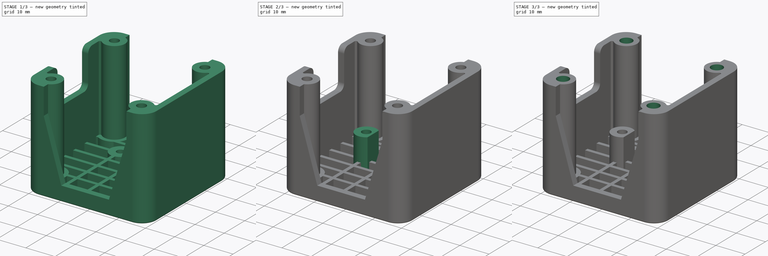
[diagram: build sequence overview — one tinted view per stage of 3, left to right]
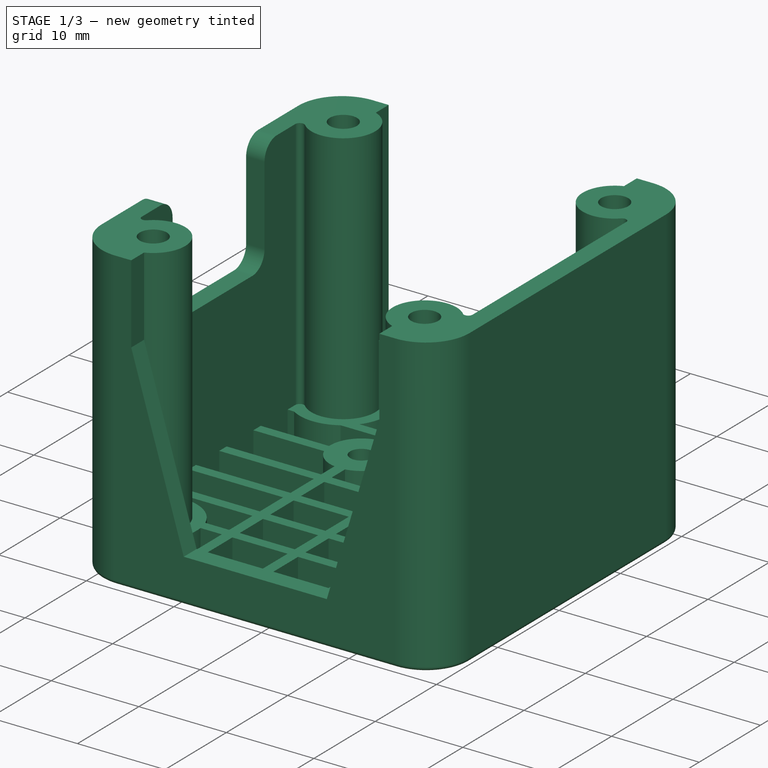
[diagram: stage 1 of 3 — iso view after this stage's code; geometry added in this stage tinted green]
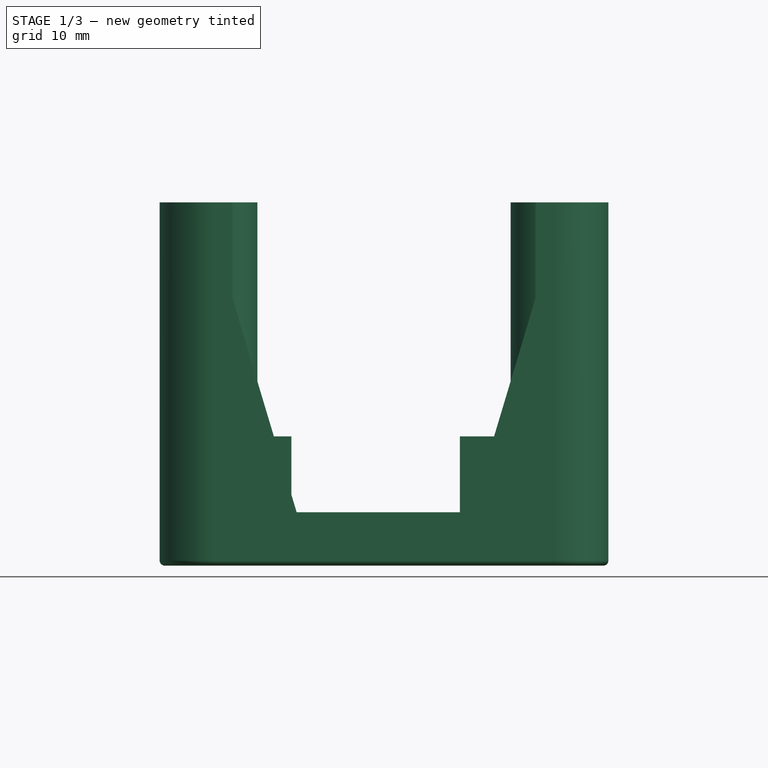
[diagram: stage 1 of 3 — front view after this stage's code; geometry added in this stage tinted green]
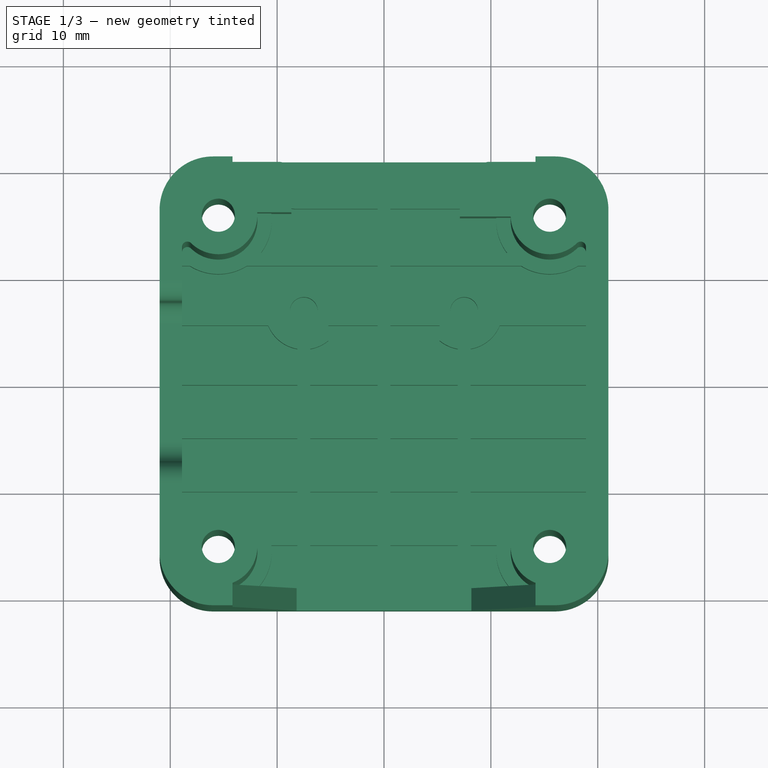
[diagram: stage 1 of 3 — top view after this stage's code; geometry added in this stage tinted green]
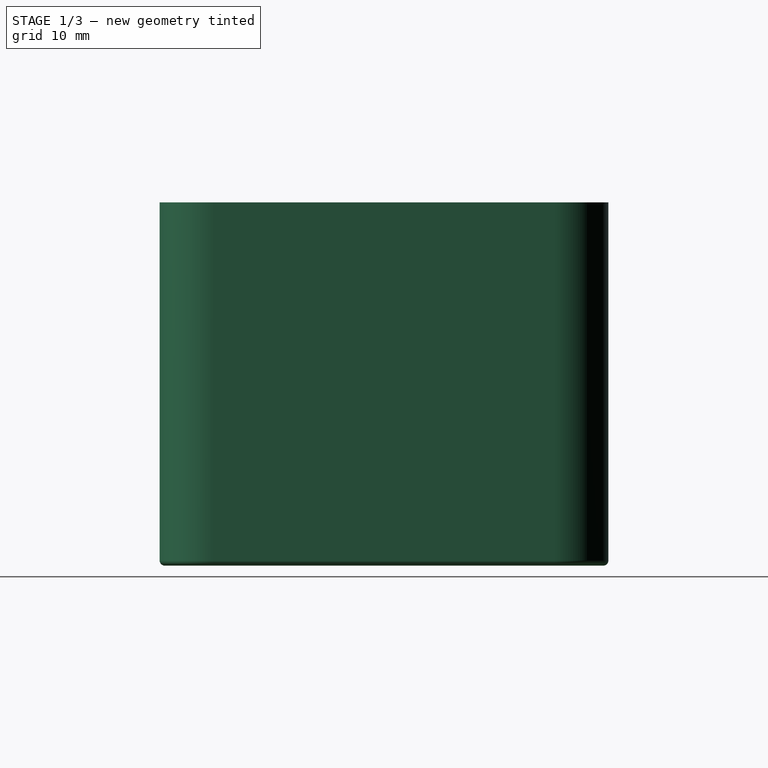
[diagram: stage 1 of 3 — right view after this stage's code; geometry added in this stage tinted green]
FCSTD DOCUMENT  (FreeCAD 1.1R44555 (Git))
Label: X AXIS COVER
License: All rights reserved
LicenseURL: http://en.wikipedia.org/wiki/All_rights_reserved
objects: Sketcher::SketchObject×5, PartDesign::Pocket×4, Part::Feature×1, PartDesign::FeatureBase×1, PartDesign::Pad×1, App::Point×1, PartDesign::Body×1
note: 29 computed .brp shape members not serialized (recipe doc carries the construction recipe); baked Part::Feature solids carry a one-line shape summary decoded from their .brp

FEATURE [Part::Feature] Part__Feature  label="X limit switch bracket"
  shape: bbox 42.82 x 42.82 x 34 mm, 221 faces (baked)
FEATURE [PartDesign::FeatureBase] BaseFeature
  BaseFeature = -> Part__Feature
  Suppressed = false
FEATURE [Sketcher::SketchObject] Sketch
  ArcFitTolerance = 0
  AttachmentSupport = -> [BaseFeature]
  ExternalGeometry = -> [BaseFeature]
  ExternalTypes = [0]
  FullyConstrained = true
  MakeInternals = false
  MapMode = 5
  Placement = pos=(0,0,12.1) rot=(0,0,1;0rad)
  sketch-geometry (2):
    g0: Circle CenterX=-7.5 CenterY=7.05 CenterZ=0 NormalX=0 NormalY=0 NormalZ=1 AngleXU=0 Radius=3.6
    g1: Circle CenterX=7.5 CenterY=7.05 CenterZ=0 NormalX=0 NormalY=0 NormalZ=1 AngleXU=0 Radius=3.6
  constraints (6):
    c: DistanceX(g-7,g-3) = 13.5
    c: DistanceY(g-3,g-4) = 13.95
    c: Coincident(g0,g-3)
    c: Diameter(g0) = 7.2
    c: Coincident(g1,g-8)
    c: Diameter(g1) = 7.2
FEATURE [PartDesign::Pocket] Pocket
  BaseFeature = -> BaseFeature
  Direction = (0,0,-1)
  Length = 7.1
  Length2 = 5
  Profile = -> Sketch
  ReferenceAxis = -> Sketch [N_Axis]
  SideType = 0
  Suppressed = false
  Type = 0
  Type2 = 0
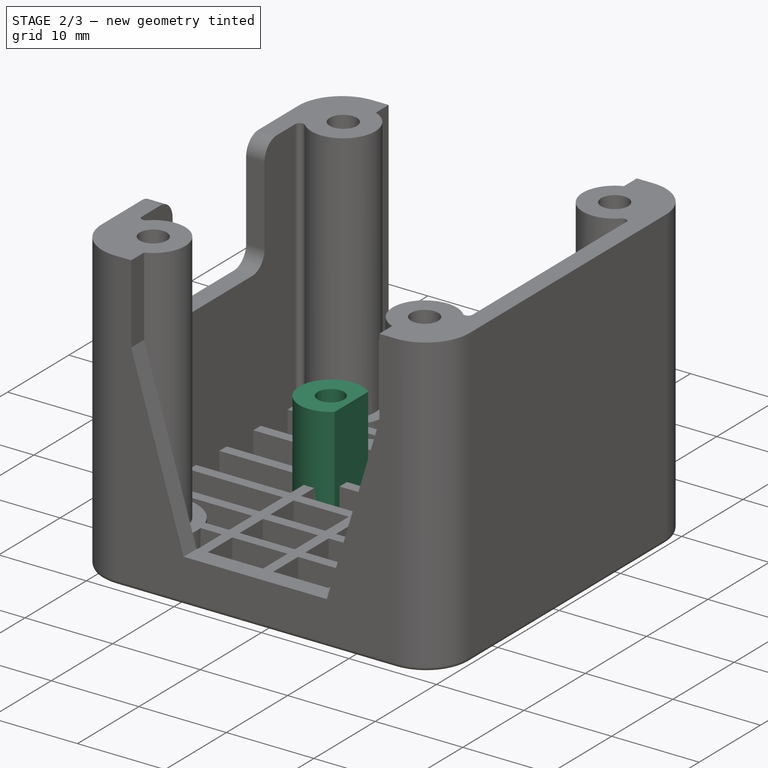
[diagram: stage 2 of 3 — iso view after this stage's code; geometry added in this stage tinted green]
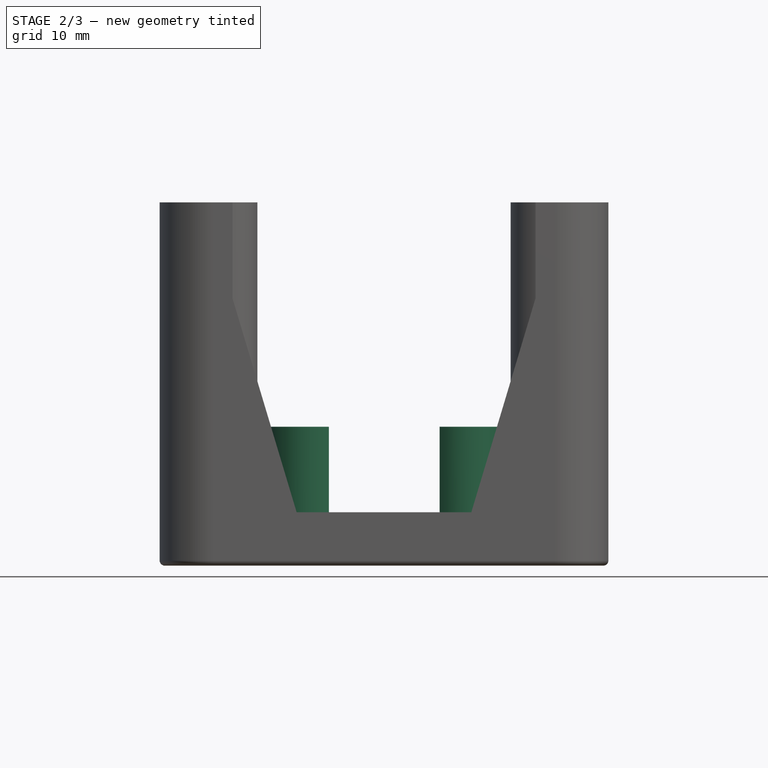
[diagram: stage 2 of 3 — front view after this stage's code; geometry added in this stage tinted green]
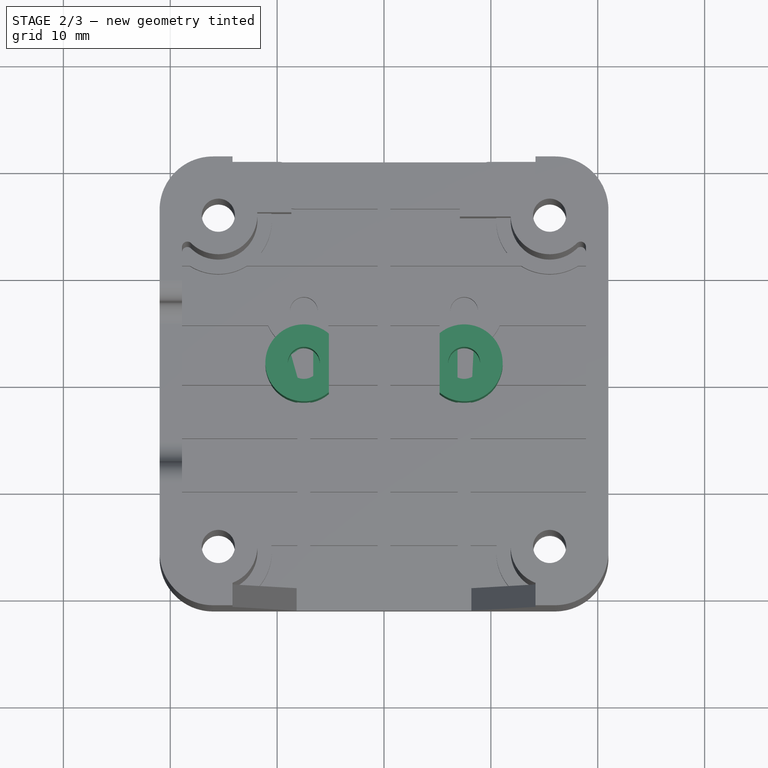
[diagram: stage 2 of 3 — top view after this stage's code; geometry added in this stage tinted green]
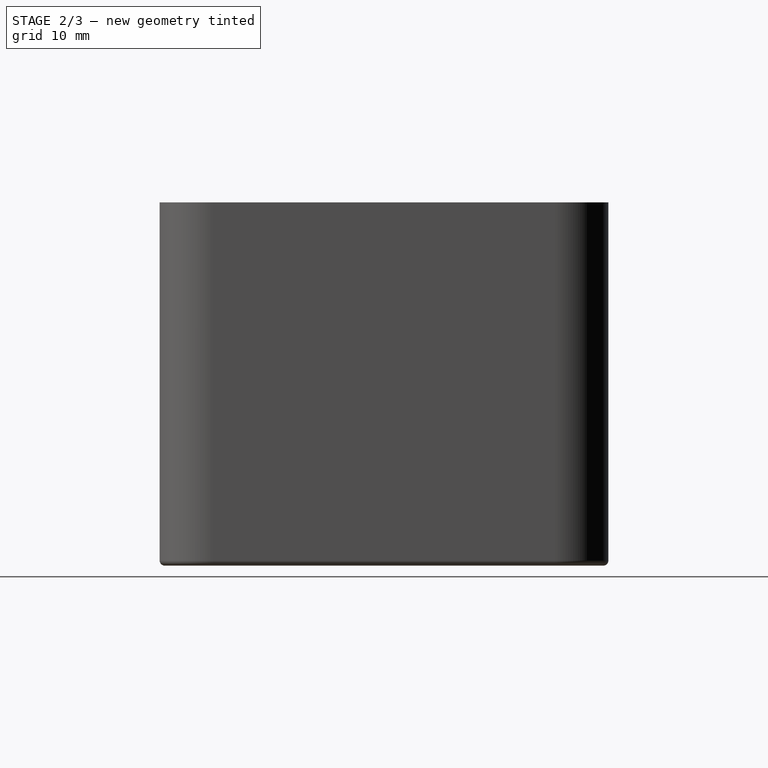
[diagram: stage 2 of 3 — right view after this stage's code; geometry added in this stage tinted green]
FEATURE [Sketcher::SketchObject] Sketch001
  ArcFitTolerance = 0
  AttachmentOffset = pos=(0,0,-3) rot=(0,0,1;0rad)
  AttachmentSupport = -> [Pocket]
  ExternalGeometry = -> [Pocket]
  ExternalTypes = [0]
  FullyConstrained = false
  MakeInternals = false
  MapMode = 5
  Placement = pos=(0,0,2) rot=(0,0,1;0rad)
  sketch-geometry (4):
    g0: ArcOfCircle CenterX=-7.5 CenterY=2.05 CenterZ=0 NormalX=0 NormalY=0 NormalZ=1 AngleXU=0 Radius=3.6 StartAngle=0.862154 EndAngle=5.42103
    g1: ArcOfCircle CenterX=7.5 CenterY=2.05 CenterZ=0 NormalX=0 NormalY=0 NormalZ=1 AngleXU=0 Radius=3.6 StartAngle=4.01934 EndAngle=8.54703
    g2: LineSegment StartX=-5.15711 StartY=4.78329 StartZ=0 EndX=-5.15711 EndY=-0.683285 EndZ=0
    g3: LineSegment StartX=5.2 StartY=4.81948 StartZ=0 EndX=5.2 EndY=-0.719476 EndZ=0
  constraints (15):
    c: DistanceX(g-6,g-4) = 13.5
    c: Diameter(g0) = 7.2
    c: Diameter(g1) = 7.2
    c: DistanceX(g-6,g0) = 13.5
    c: DistanceX(g-3,g-7) = 13.5
    c: DistanceX(g1,g-7) = 13.5
    c: DistanceY(g1,g-3) = 5
    c: DistanceY(g0,g-4) = 5
    c: Vertical(g2)
    c: PointOnObject(g3,g-10)
    c: Vertical(g3)
    c: Coincident(g1,g3)
    c: Coincident(g0,g2)
    c: Coincident(g0,g2)
    c: Coincident(g3,g1)
FEATURE [PartDesign::Pad] Pad
  BaseFeature = -> Pocket
  Direction = (0,0,1)
  Length = 11
  Length2 = 10
  Profile = -> Sketch001
  ReferenceAxis = -> Sketch001 [N_Axis]
  SideType = 0
  Suppressed = false
  Type = 0
  Type2 = 0
FEATURE [Sketcher::SketchObject] Sketch002
  ArcFitTolerance = 0
  AttachmentSupport = -> [Pad]
  ExternalGeometry = -> [Pad]
  ExternalTypes = [0]
  FullyConstrained = true
  MakeInternals = false
  MapMode = 5
  Placement = pos=(0,0,13) rot=(0,0,1;0rad)
  sketch-geometry (2):
    g0: Circle CenterX=-7.5 CenterY=2.05 CenterZ=0 NormalX=0 NormalY=0 NormalZ=1 AngleXU=0 Radius=1.5
    g1: Circle CenterX=7.5 CenterY=2.05 CenterZ=0 NormalX=0 NormalY=0 NormalZ=1 AngleXU=0 Radius=1.5
  constraints (4):
    c: Coincident(g0,g-3)
    c: Coincident(g1,g-4)
    c: Equal(g1,g0)
    c: Diameter(g0) = 3
FEATURE [PartDesign::Pocket] Pocket001
  BaseFeature = -> Pad
  Direction = (0,0,-1)
  Length = 8
  Length2 = 5
  Profile = -> Sketch002
  ReferenceAxis = -> Sketch002 [N_Axis]
  SideType = 0
  Suppressed = false
  Type = 0
  Type2 = 0
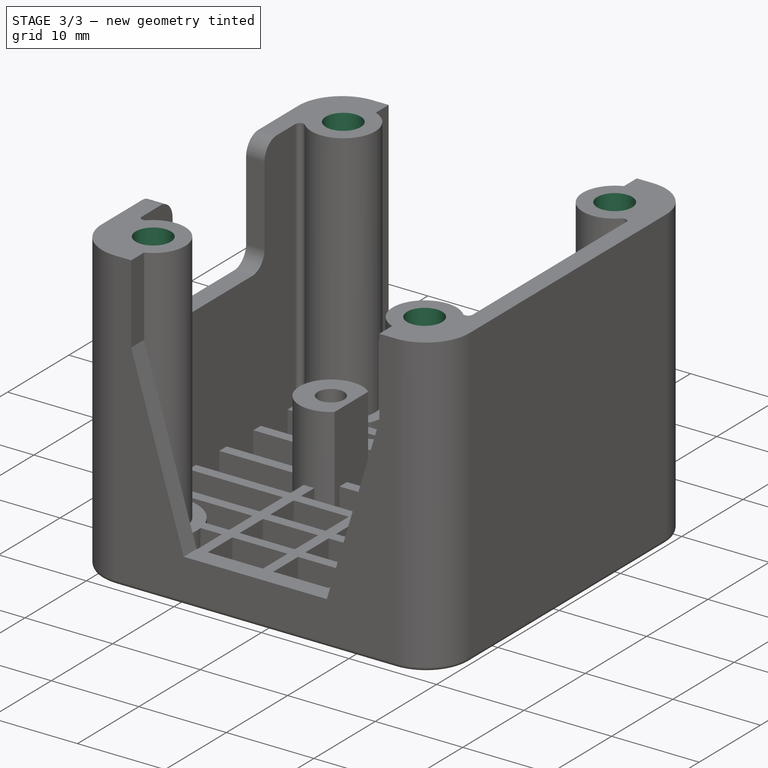
[diagram: stage 3 of 3 — iso view after this stage's code; geometry added in this stage tinted green]
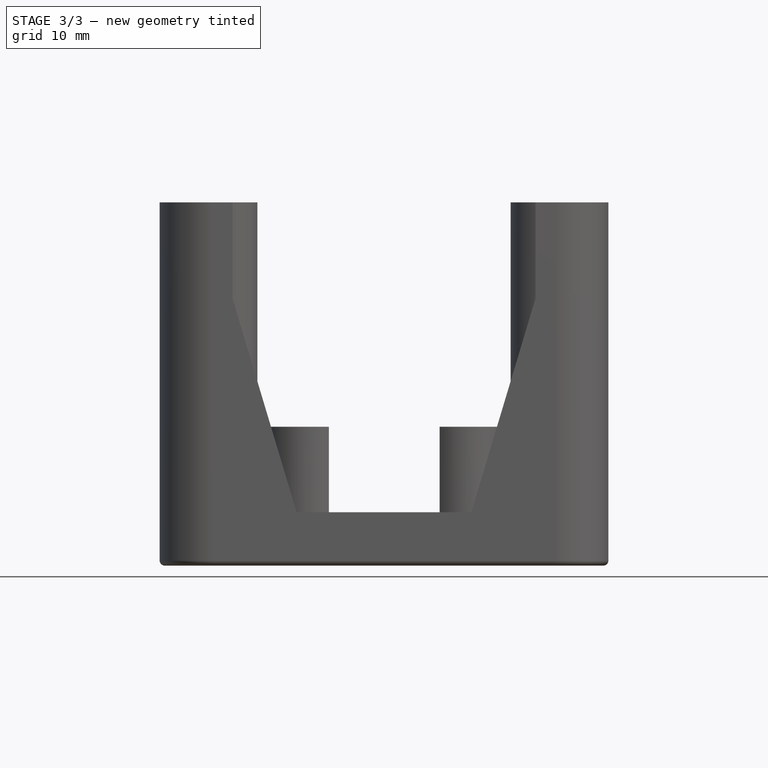
[diagram: stage 3 of 3 — front view after this stage's code; geometry added in this stage tinted green]
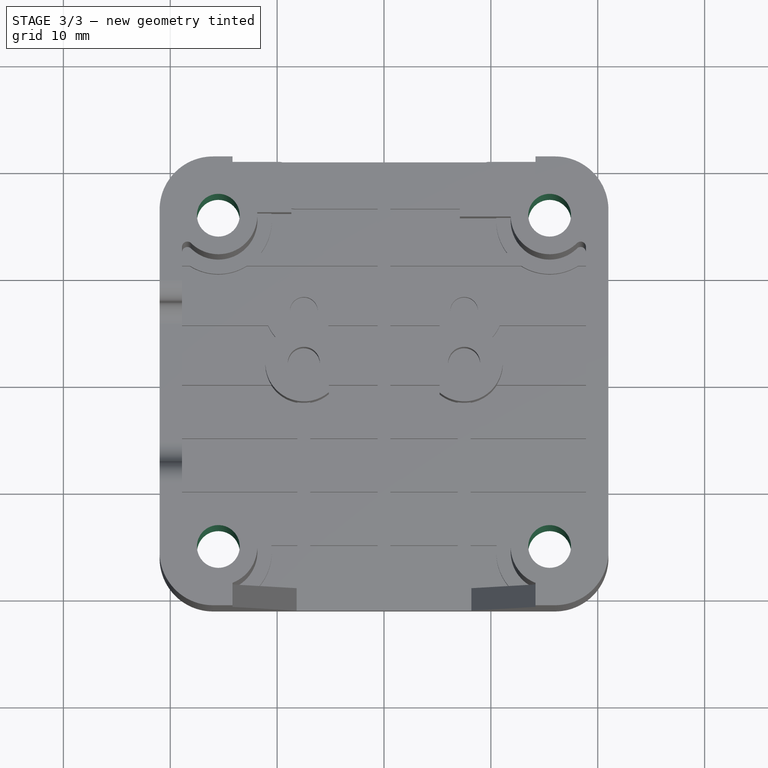
[diagram: stage 3 of 3 — top view after this stage's code; geometry added in this stage tinted green]
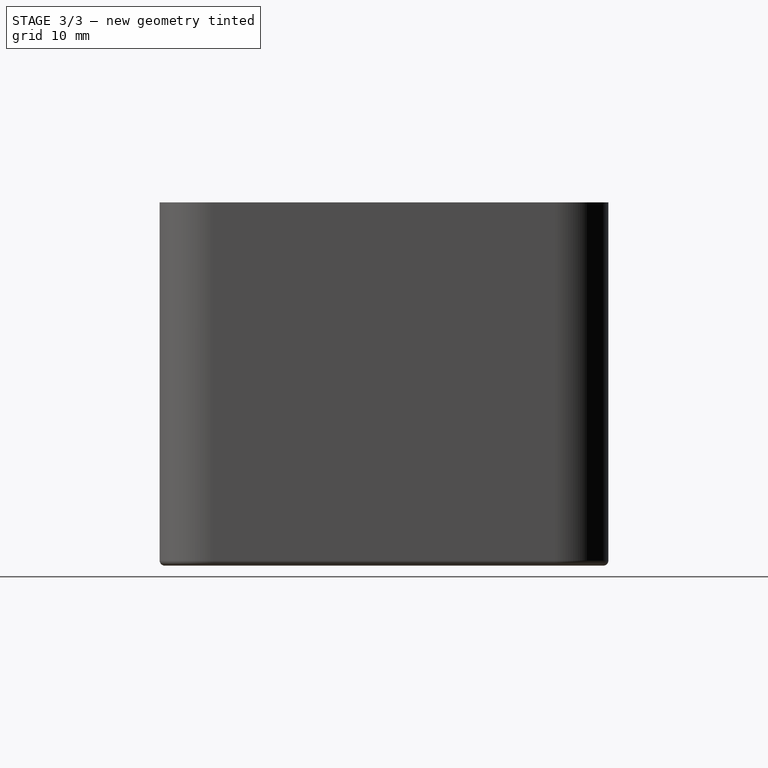
[diagram: stage 3 of 3 — right view after this stage's code; geometry added in this stage tinted green]
FEATURE [Sketcher::SketchObject] Sketch003
  ArcFitTolerance = 0
  AttachmentSupport = -> [Pocket001]
  ExternalGeometry = -> [Pocket001]
  ExternalTypes = [0]
  FullyConstrained = true
  MakeInternals = false
  MapMode = 5
  Placement = pos=(0,0,34) rot=(0,0,1;0rad)
  sketch-geometry (4):
    g0: Circle CenterX=-15.5 CenterY=15.5 CenterZ=0 NormalX=0 NormalY=0 NormalZ=1 AngleXU=0 Radius=2
    g1: Circle CenterX=15.5 CenterY=15.5 CenterZ=0 NormalX=0 NormalY=0 NormalZ=1 AngleXU=0 Radius=2
    g2: Circle CenterX=15.5 CenterY=-15.5 CenterZ=0 NormalX=0 NormalY=0 NormalZ=1 AngleXU=0 Radius=2
    g3: Circle CenterX=-15.5 CenterY=-15.5 CenterZ=0 NormalX=0 NormalY=0 NormalZ=1 AngleXU=0 Radius=2
  constraints (8):
    c: Coincident(g0,g-6)
    c: Coincident(g1,g-5)
    c: Coincident(g2,g-4)
    c: Coincident(g3,g-3)
    c: Equal(g3,g2)
    c: Equal(g2,g1)
    c: Equal(g1,g0)
    c: Diameter(g0) = 4
FEATURE [PartDesign::Pocket] Pocket002
  BaseFeature = -> Pocket001
  Direction = (0,0,-1)
  Length = 5
  Length2 = 5
  Profile = -> Sketch003
  ReferenceAxis = -> Sketch003 [N_Axis]
  SideType = 0
  Suppressed = false
  Type = 1
  Type2 = 0
FEATURE [App::Point] Origin001  label="Origin"
  Role = Origin
FEATURE [Sketcher::SketchObject] MirroredSketch
  ArcFitTolerance = 1e-06
  AttachmentOffset = pos=(14,-18,0) rot=(0,0,1;0rad)
  AttachmentSupport = -> [Pocket002]
  ExternalTypes = [0]
  FullyConstrained = false
  MakeInternals = false
  MapMode = 5
  Placement = pos=(14,18,0) rot=(1,0,0;3.14159rad)
  sketch-geometry (160):
    g0: BSplineCurve PolesCount=4 KnotsCount=2 Degree=3 IsPeriodic=0
    g1: BSplineCurve PolesCount=4 KnotsCount=2 Degree=3 IsPeriodic=0
    g2: BSplineCurve PolesCount=4 KnotsCount=2 Degree=3 IsPeriodic=0
    g3: BSplineCurve PolesCount=4 KnotsCount=2 Degree=3 IsPeriodic=0
    g4: BSplineCurve PolesCount=4 KnotsCount=2 Degree=3 IsPeriodic=0
    g5: BSplineCurve PolesCount=4 KnotsCount=2 Degree=3 IsPeriodic=0
    g6: BSplineCurve PolesCount=4 KnotsCount=2 Degree=3 IsPeriodic=0
    g7: BSplineCurve PolesCount=4 KnotsCount=2 Degree=3 IsPeriodic=0
    g8: BSplineCurve PolesCount=4 KnotsCount=2 Degree=3 IsPeriodic=0
    g9: BSplineCurve PolesCount=4 KnotsCount=2 Degree=3 IsPeriodic=0
    g10: BSplineCurve PolesCount=4 KnotsCount=2 Degree=3 IsPeriodic=0
    g11: BSplineCurve PolesCount=4 KnotsCount=2 Degree=3 IsPeriodic=0
    g12: BSplineCurve PolesCount=4 KnotsCount=2 Degree=3 IsPeriodic=0
    g13: BSplineCurve PolesCount=4 KnotsCount=2 Degree=3 IsPeriodic=0
    g14: BSplineCurve PolesCount=4 KnotsCount=2 Degree=3 IsPeriodic=0
    g15: BSplineCurve PolesCount=4 KnotsCount=2 Degree=3 IsPeriodic=0
    g16: BSplineCurve PolesCount=4 KnotsCount=2 Degree=3 IsPeriodic=0
    g17: BSplineCurve PolesCount=4 KnotsCount=2 Degree=3 IsPeriodic=0
    g18: BSplineCurve PolesCount=4 KnotsCount=2 Degree=3 IsPeriodic=0
    g19: BSplineCurve PolesCount=4 KnotsCount=2 Degree=3 IsPeriodic=0
    g20: BSplineCurve PolesCount=4 KnotsCount=2 Degree=3 IsPeriodic=0
    g21: BSplineCurve PolesCount=4 KnotsCount=2 Degree=3 IsPeriodic=0
    g22: BSplineCurve PolesCount=4 KnotsCount=2 Degree=3 IsPeriodic=0
    g23: BSplineCurve PolesCount=4 KnotsCount=2 Degree=3 IsPeriodic=0
    g24: BSplineCurve PolesCount=4 KnotsCount=2 Degree=3 IsPeriodic=0
    g25: BSplineCurve PolesCount=4 KnotsCount=2 Degree=3 IsPeriodic=0
    g26: BSplineCurve PolesCount=4 KnotsCount=2 Degree=3 IsPeriodic=0
    g27: BSplineCurve PolesCount=4 KnotsCount=2 Degree=3 IsPeriodic=0
    g28: BSplineCurve PolesCount=4 KnotsCount=2 Degree=3 IsPeriodic=0
    g29: BSplineCurve PolesCount=4 KnotsCount=2 Degree=3 IsPeriodic=0
    g30: BSplineCurve PolesCount=4 KnotsCount=2 Degree=3 IsPeriodic=0
    g31: BSplineCurve PolesCount=4 KnotsCount=2 Degree=3 IsPeriodic=0
    g32: BSplineCurve PolesCount=4 KnotsCount=2 Degree=3 IsPeriodic=0
    g33: BSplineCurve PolesCount=4 KnotsCount=2 Degree=3 IsPeriodic=0
    g34: BSplineCurve PolesCount=4 KnotsCount=2 Degree=3 IsPeriodic=0
    g35: BSplineCurve PolesCount=4 KnotsCount=2 Degree=3 IsPeriodic=0
    g36: BSplineCurve PolesCount=4 KnotsCount=2 Degree=3 IsPeriodic=0
    g37: BSplineCurve PolesCount=4 KnotsCount=2 Degree=3 IsPeriodic=0
    g38: BSplineCurve PolesCount=4 KnotsCount=2 Degree=3 IsPeriodic=0
    g39: BSplineCurve PolesCount=4 KnotsCount=2 Degree=3 IsPeriodic=0
    g40: BSplineCurve PolesCount=4 KnotsCount=2 Degree=3 IsPeriodic=0
    g41: BSplineCurve PolesCount=4 KnotsCount=2 Degree=3 IsPeriodic=0
    g42: BSplineCurve PolesCount=4 KnotsCount=2 Degree=3 IsPeriodic=0
    g43: BSplineCurve PolesCount=4 KnotsCount=2 Degree=3 IsPeriodic=0
    g44: BSplineCurve PolesCount=4 KnotsCount=2 Degree=3 IsPeriodic=0
    g45: BSplineCurve PolesCount=4 KnotsCount=2 Degree=3 IsPeriodic=0
    g46: BSplineCurve PolesCount=4 KnotsCount=2 Degree=3 IsPeriodic=0
    g47: BSplineCurve PolesCount=4 KnotsCount=2 Degree=3 IsPeriodic=0
    g48: BSplineCurve PolesCount=4 KnotsCount=2 Degree=3 IsPeriodic=0
    g49: BSplineCurve PolesCount=4 KnotsCount=2 Degree=3 IsPeriodic=0
    g50: BSplineCurve PolesCount=4 KnotsCount=2 Degree=3 IsPeriodic=0
    g51: BSplineCurve PolesCount=4 KnotsCount=2 Degree=3 IsPeriodic=0
    g52: BSplineCurve PolesCount=4 KnotsCount=2 Degree=3 IsPeriodic=0
    g53: BSplineCurve PolesCount=4 KnotsCount=2 Degree=3 IsPeriodic=0
    g54: BSplineCurve PolesCount=4 KnotsCount=2 Degree=3 IsPeriodic=0
    g55: BSplineCurve PolesCount=4 KnotsCount=2 Degree=3 IsPeriodic=0
    g56: BSplineCurve PolesCount=4 KnotsCount=2 Degree=3 IsPeriodic=0
    g57: BSplineCurve PolesCount=4 KnotsCount=2 Degree=3 IsPeriodic=0
    g58: BSplineCurve PolesCount=4 KnotsCount=2 Degree=3 IsPeriodic=0
    g59: BSplineCurve PolesCount=4 KnotsCount=2 Degree=3 IsPeriodic=0
    g60: BSplineCurve PolesCount=4 KnotsCount=2 Degree=3 IsPeriodic=0
    g61: BSplineCurve PolesCount=4 KnotsCount=2 Degree=3 IsPeriodic=0
    g62: BSplineCurve PolesCount=4 KnotsCount=2 Degree=3 IsPeriodic=0
    g63: BSplineCurve PolesCount=4 KnotsCount=2 Degree=3 IsPeriodic=0
    g64: BSplineCurve PolesCount=4 KnotsCount=2 Degree=3 IsPeriodic=0
    g65: BSplineCurve PolesCount=4 KnotsCount=2 Degree=3 IsPeriodic=0
    g66: BSplineCurve PolesCount=4 KnotsCount=2 Degree=3 IsPeriodic=0
    g67: BSplineCurve PolesCount=4 KnotsCount=2 Degree=3 IsPeriodic=0
    g68: BSplineCurve PolesCount=4 KnotsCount=2 Degree=3 IsPeriodic=0
    g69: BSplineCurve PolesCount=4 KnotsCount=2 Degree=3 IsPeriodic=0
    g70: BSplineCurve PolesCount=4 KnotsCount=2 Degree=3 IsPeriodic=0
    g71: BSplineCurve PolesCount=4 KnotsCount=2 Degree=3 IsPeriodic=0
    g72: BSplineCurve PolesCount=4 KnotsCount=2 Degree=3 IsPeriodic=0
    g73: BSplineCurve PolesCount=4 KnotsCount=2 Degree=3 IsPeriodic=0
    g74: BSplineCurve PolesCount=4 KnotsCount=2 Degree=3 IsPeriodic=0
    g75: BSplineCurve PolesCount=4 KnotsCount=2 Degree=3 IsPeriodic=0
    g76: BSplineCurve PolesCount=4 KnotsCount=2 Degree=3 IsPeriodic=0
    g77: BSplineCurve PolesCount=4 KnotsCount=2 Degree=3 IsPeriodic=0
    g78: BSplineCurve PolesCount=4 KnotsCount=2 Degree=3 IsPeriodic=0
    g79: BSplineCurve PolesCount=4 KnotsCount=2 Degree=3 IsPeriodic=0
    g80: BSplineCurve PolesCount=4 KnotsCount=2 Degree=3 IsPeriodic=0
    g81: BSplineCurve PolesCount=4 KnotsCount=2 Degree=3 IsPeriodic=0
    g82: BSplineCurve PolesCount=4 KnotsCount=2 Degree=3 IsPeriodic=0
    g83: BSplineCurve PolesCount=4 KnotsCount=2 Degree=3 IsPeriodic=0
    g84: BSplineCurve PolesCount=4 KnotsCount=2 Degree=3 IsPeriodic=0
    g85: BSplineCurve PolesCount=4 KnotsCount=2 Degree=3 IsPeriodic=0
    g86: BSplineCurve PolesCount=4 KnotsCount=2 Degree=3 IsPeriodic=0
    g87: BSplineCurve PolesCount=4 KnotsCount=2 Degree=3 IsPeriodic=0
    g88: BSplineCurve PolesCount=4 KnotsCount=2 Degree=3 IsPeriodic=0
    g89: BSplineCurve PolesCount=4 KnotsCount=2 Degree=3 IsPeriodic=0
    g90: BSplineCurve PolesCount=4 KnotsCount=2 Degree=3 IsPeriodic=0
    g91: BSplineCurve PolesCount=4 KnotsCount=2 Degree=3 IsPeriodic=0
    g92: BSplineCurve PolesCount=4 KnotsCount=2 Degree=3 IsPeriodic=0
    g93: BSplineCurve PolesCount=4 KnotsCount=2 Degree=3 IsPeriodic=0
    g94: BSplineCurve PolesCount=4 KnotsCount=2 Degree=3 IsPeriodic=0
    g95: BSplineCurve PolesCount=4 KnotsCount=2 Degree=3 IsPeriodic=0
    g96: BSplineCurve PolesCount=4 KnotsCount=2 Degree=3 IsPeriodic=0
    g97: BSplineCurve PolesCount=4 KnotsCount=2 Degree=3 IsPeriodic=0
    g98: BSplineCurve PolesCount=4 KnotsCount=2 Degree=3 IsPeriodic=0
    g99: BSplineCurve PolesCount=4 KnotsCount=2 Degree=3 IsPeriodic=0
    g100: BSplineCurve PolesCount=4 KnotsCount=2 Degree=3 IsPeriodic=0
    g101: BSplineCurve PolesCount=4 KnotsCount=2 Degree=3 IsPeriodic=0
    g102: BSplineCurve PolesCount=4 KnotsCount=2 Degree=3 IsPeriodic=0
    g103: BSplineCurve PolesCount=4 KnotsCount=2 Degree=3 IsPeriodic=0
    g104: BSplineCurve PolesCount=4 KnotsCount=2 Degree=3 IsPeriodic=0
    g105: BSplineCurve PolesCount=2 KnotsCount=2 Degree=1 IsPeriodic=0
    g106: BSplineCurve PolesCount=4 KnotsCount=2 Degree=3 IsPeriodic=0
    g107: BSplineCurve PolesCount=4 KnotsCount=2 Degree=3 IsPeriodic=0
    g108: BSplineCurve PolesCount=4 KnotsCount=2 Degree=3 IsPeriodic=0
    g109: BSplineCurve PolesCount=4 KnotsCount=2 Degree=3 IsPeriodic=0
    g110: BSplineCurve PolesCount=4 KnotsCount=2 Degree=3 IsPeriodic=0
    g111: BSplineCurve PolesCount=4 KnotsCount=2 Degree=3 IsPeriodic=0
    g112: BSplineCurve PolesCount=4 KnotsCount=2 Degree=3 IsPeriodic=0
    g113: BSplineCurve PolesCount=4 KnotsCount=2 Degree=3 IsPeriodic=0
    g114: BSplineCurve PolesCount=4 KnotsCount=2 Degree=3 IsPeriodic=0
    g115: BSplineCurve PolesCount=4 KnotsCount=2 Degree=3 IsPeriodic=0
    g116: BSplineCurve PolesCount=4 KnotsCount=2 Degree=3 IsPeriodic=0
    g117: BSplineCurve PolesCount=4 KnotsCount=2 Degree=3 IsPeriodic=0
    g118: BSplineCurve PolesCount=4 KnotsCount=2 Degree=3 IsPeriodic=0
    g119: BSplineCurve PolesCount=4 KnotsCount=2 Degree=3 IsPeriodic=0
    g120: BSplineCurve PolesCount=4 KnotsCount=2 Degree=3 IsPeriodic=0
    g121: BSplineCurve PolesCount=4 KnotsCount=2 Degree=3 IsPeriodic=0
    g122: BSplineCurve PolesCount=4 KnotsCount=2 Degree=3 IsPeriodic=0
    g123: BSplineCurve PolesCount=4 KnotsCount=2 Degree=3 IsPeriodic=0
    g124: BSplineCurve PolesCount=4 KnotsCount=2 Degree=3 IsPeriodic=0
    g125: BSplineCurve PolesCount=4 KnotsCount=2 Degree=3 IsPeriodic=0
    g126: BSplineCurve PolesCount=4 KnotsCount=2 Degree=3 IsPeriodic=0
    g127: BSplineCurve PolesCount=4 KnotsCount=2 Degree=3 IsPeriodic=0
    g128: BSplineCurve PolesCount=4 KnotsCount=2 Degree=3 IsPeriodic=0
    g129: BSplineCurve PolesCount=4 KnotsCount=2 Degree=3 IsPeriodic=0
    g130: BSplineCurve PolesCount=4 KnotsCount=2 Degree=3 IsPeriodic=0
    g131: BSplineCurve PolesCount=4 KnotsCount=2 Degree=3 IsPeriodic=0
    g132: BSplineCurve PolesCount=4 KnotsCount=2 Degree=3 IsPeriodic=0
    g133: BSplineCurve PolesCount=4 KnotsCount=2 Degree=3 IsPeriodic=0
    g134: BSplineCurve PolesCount=4 KnotsCount=2 Degree=3 IsPeriodic=0
    g135: BSplineCurve PolesCount=4 KnotsCount=2 Degree=3 IsPeriodic=0
    g136: BSplineCurve PolesCount=4 KnotsCount=2 Degree=3 IsPeriodic=0
    g137: BSplineCurve PolesCount=4 KnotsCount=2 Degree=3 IsPeriodic=0
    g138: BSplineCurve PolesCount=4 KnotsCount=2 Degree=3 IsPeriodic=0
    g139: BSplineCurve PolesCount=4 KnotsCount=2 Degree=3 IsPeriodic=0
    g140: BSplineCurve PolesCount=4 KnotsCount=2 Degree=3 IsPeriodic=0
    g141: BSplineCurve PolesCount=4 KnotsCount=2 Degree=3 IsPeriodic=0
    g142: BSplineCurve PolesCount=4 KnotsCount=2 Degree=3 IsPeriodic=0
    g143: BSplineCurve PolesCount=4 KnotsCount=2 Degree=3 IsPeriodic=0
    g144: BSplineCurve PolesCount=4 KnotsCount=2 Degree=3 IsPeriodic=0
    g145: BSplineCurve PolesCount=4 KnotsCount=2 Degree=3 IsPeriodic=0
    g146: BSplineCurve PolesCount=4 KnotsCount=2 Degree=3 IsPeriodic=0
    g147: BSplineCurve PolesCount=4 KnotsCount=2 Degree=3 IsPeriodic=0
    g148: BSplineCurve PolesCount=4 KnotsCount=2 Degree=3 IsPeriodic=0
    g149: BSplineCurve PolesCount=4 KnotsCount=2 Degree=3 IsPeriodic=0
    g150: BSplineCurve PolesCount=4 KnotsCount=2 Degree=3 IsPeriodic=0
    g151: BSplineCurve PolesCount=4 KnotsCount=2 Degree=3 IsPeriodic=0
    g152: BSplineCurve PolesCount=4 KnotsCount=2 Degree=3 IsPeriodic=0
    g153: BSplineCurve PolesCount=4 KnotsCount=2 Degree=3 IsPeriodic=0
    g154: BSplineCurve PolesCount=4 KnotsCount=2 Degree=3 IsPeriodic=0
    g155: BSplineCurve PolesCount=4 KnotsCount=2 Degree=3 IsPeriodic=0
    g156: BSplineCurve PolesCount=4 KnotsCount=2 Degree=3 IsPeriodic=0
    g157: BSplineCurve PolesCount=4 KnotsCount=2 Degree=3 IsPeriodic=0
    g158: BSplineCurve PolesCount=4 KnotsCount=2 Degree=3 IsPeriodic=0
    g159: BSplineCurve PolesCount=4 KnotsCount=2 Degree=3 IsPeriodic=0
  constraints (160):
    c: Coincident(g10,g11)
    c: Coincident(g4,g5)
    c: Coincident(g11,g12)
    c: Coincident(g0,g12)
    c: Coincident(g5,g6)
    c: Coincident(g9,g10)
    c: Coincident(g0,g1)
    c: Coincident(g8,g9)
    c: Coincident(g1,g2)
    c: Coincident(g3,g4)
    c: Coincident(g2,g3)
    c: Coincident(g7,g8)
    c: Coincident(g6,g7)
    c: Coincident(g79,g80)
    c: Coincident(g96,g97)
    c: Coincident(g109,g110)
    c: Coincident(g13,g26)
    c: Coincident(g110,g111)
    c: Coincident(g13,g14)
    c: Coincident(g136,g137)
    c: Coincident(g102,g103)
    c: Coincident(g82,g83)
    c: Coincident(g137,g138)
    c: Coincident(g103,g104)
    c: Coincident(g78,g79)
    c: Coincident(g83,g84)
    c: Coincident(g80,g81)
    c: Coincident(g25,g26)
    c: Coincident(g95,g96)
    c: Coincident(g108,g109)
    c: Coincident(g73,g81)
    c: Coincident(g14,g15)
    c: Coincident(g111,g112)
    c: Coincident(g127,g131)
    c: Coincident(g127,g128)
    c: Coincident(g87,g88)
    c: Coincident(g91,g92)
    c: Coincident(g112,g113)
    c: Coincident(g15,g16)
    c: Coincident(g130,g131)
    c: Coincident(g97,g98)
    c: Coincident(g88,g89)
    c: Coincident(g84,g85)
    c: Coincident(g92,g93)
    c: Coincident(g113,g114)
    c: Coincident(g16,g17)
    c: Coincident(g17,g18)
    c: Coincident(g114,g115)
    c: Coincident(g82,g100)
    c: Coincident(g129,g130)
    c: Coincident(g128,g129)
    c: Coincident(g73,g74)
    c: Coincident(g107,g108)
    c: Coincident(g135,g136)
    c: Coincident(g18,g19)
    c: Coincident(g19,g20)
    c: Coincident(g106,g107)
    c: Coincident(g24,g25)
    c: Coincident(g99,g100)
    c: Coincident(g106,g120)
    c: Coincident(g74,g75)
    c: Coincident(g75,g76)
    c: Coincident(g138,g139)
    c: Coincident(g119,g120)
    c: Coincident(g139,g140)
    c: Coincident(g132,g140)
    c: Coincident(g20,g21)
    c: Coincident(g98,g99)
    c: Coincident(g118,g119)
    c: Coincident(g132,g133)
    c: Coincident(g21,g22)
    c: Coincident(g115,g116)
    c: Coincident(g90,g91)
    c: Coincident(g89,g90)
    c: Coincident(g77,g78)
    c: Coincident(g134,g135)
    c: Coincident(g85,g86)
    c: Coincident(g86,g87)
    c: Coincident(g23,g24)
    c: Coincident(g104,g105)
    c: Coincident(g101,g102)
    c: Coincident(g94,g95)
    c: Coincident(g117,g118)
    c: Coincident(g101,g105)
    c: Coincident(g22,g23)
    c: Coincident(g93,g94)
    c: Coincident(g76,g77)
    c: Coincident(g133,g134)
    c: Coincident(g116,g117)
    c: Coincident(g148,g149)
    c: Coincident(g157,g158)
    c: Coincident(g158,g159)
    c: Coincident(g147,g148)
    c: Coincident(g146,g147)
    c: Coincident(g156,g157)
    c: Coincident(g149,g150)
    c: Coincident(g57,g58)
    c: Coincident(g155,g156)
    c: Coincident(g46,g47)
    c: Coincident(g56,g57)
    c: Coincident(g47,g48)
    c: Coincident(g48,g49)
    c: Coincident(g45,g46)
    c: Coincident(g150,g151)
    c: Coincident(g55,g56)
    c: Coincident(g49,g50)
    c: Coincident(g122,g123)
    c: Coincident(g43,g44)
    c: Coincident(g44,g45)
    c: Coincident(g54,g55)
    c: Coincident(g123,g124)
    c: Coincident(g42,g43)
    c: Coincident(g50,g51)
    c: Coincident(g124,g125)
    c: Coincident(g53,g54)
    c: Coincident(g40,g41)
    c: Coincident(g52,g53)
    c: Coincident(g51,g52)
    c: Coincident(g58,g59)
    c: Coincident(g121,g122)
    c: Coincident(g39,g40)
    c: Coincident(g41,g42)
    c: Coincident(g38,g39)
    c: Coincident(g125,g126)
    c: Coincident(g121,g126)
    c: Coincident(g32,g33)
    c: Coincident(g31,g32)
    c: Coincident(g153,g159)
    c: Coincident(g37,g38)
    c: Coincident(g59,g60)
    c: Coincident(g67,g68)
    c: Coincident(g154,g155)
    c: Coincident(g66,g67)
    c: Coincident(g36,g37)
    c: Coincident(g60,g61)
    c: Coincident(g153,g154)
    c: Coincident(g65,g66)
    c: Coincident(g68,g69)
    c: Coincident(g71,g72)
    c: Coincident(g141,g144)
    c: Coincident(g33,g34)
    c: Coincident(g64,g65)
    c: Coincident(g145,g146)
    c: Coincident(g141,g142)
    c: Coincident(g63,g64)
    c: Coincident(g145,g152)
    c: Coincident(g143,g144)
    c: Coincident(g61,g62)
    c: Coincident(g34,g35)
    c: Coincident(g29,g30)
    c: Coincident(g35,g36)
    c: Coincident(g62,g63)
    c: Coincident(g27,g30)
    c: Coincident(g69,g70)
    c: Coincident(g70,g71)
    c: Coincident(g142,g143)
    c: Coincident(g28,g29)
    c: Coincident(g151,g152)
    c: Coincident(g27,g28)
    c: Coincident(g31,g72)
FEATURE [PartDesign::Pocket] Pocket003
  BaseFeature = -> Pocket002
  Direction = (0,0,1)
  Length = 2
  Length2 = 5
  Profile = -> MirroredSketch
  ReferenceAxis = -> MirroredSketch [N_Axis]
  Refine = true
  SideType = 0
  Suppressed = false
  Type = 0
  Type2 = 0
FEATURE [PartDesign::Body] Body
  AllowCompound = true
  BaseFeature = -> Part__Feature
  Group = -> [BaseFeature,Sketch,Pocket,Sketch001,Pad,Sketch002,Pocket001,Sketch003,Pocket002,MirroredSketch,Pocket003]
  Origin = -> Origin
  Tip = -> Pocket003
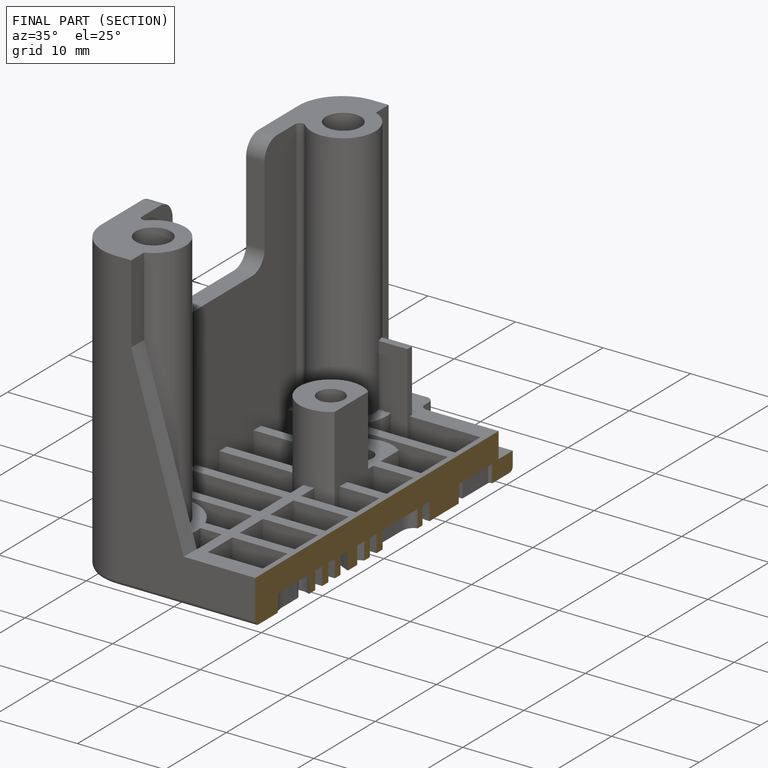
[diagram: finished part — half-section view (interior)]
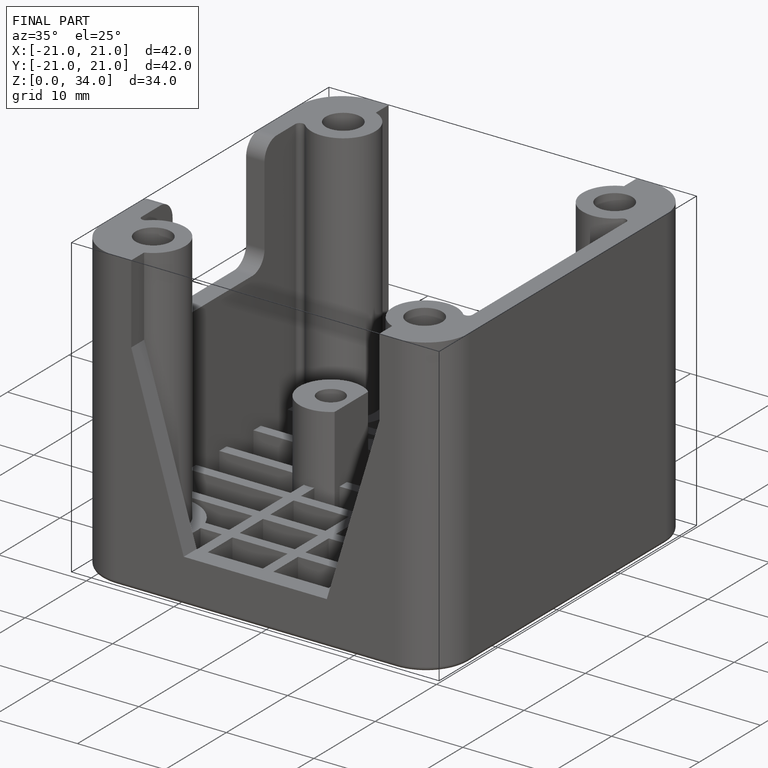
[diagram: finished part — iso view with bounding-box wireframe]
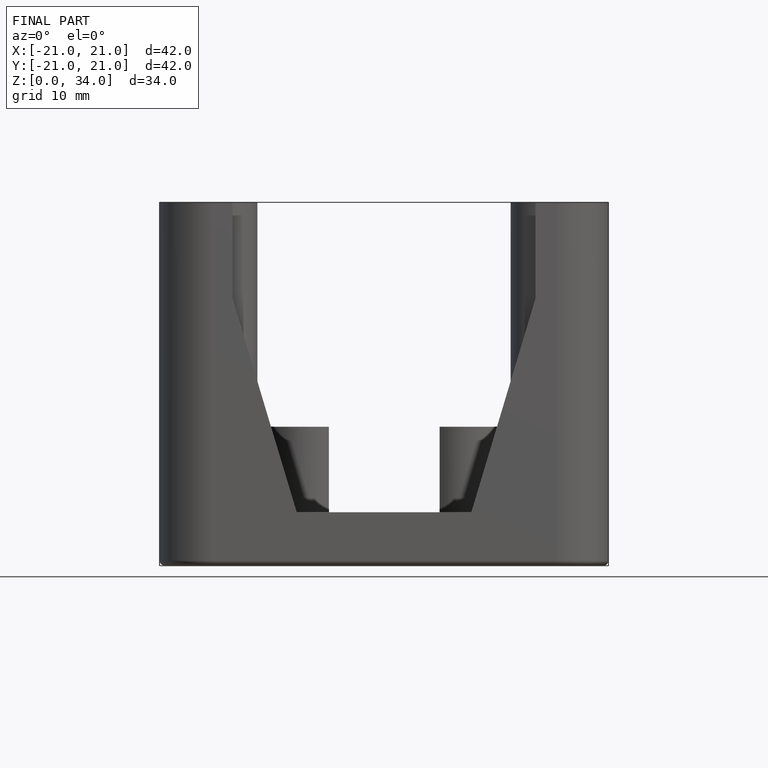
[diagram: finished part — front view with bounding-box wireframe]
